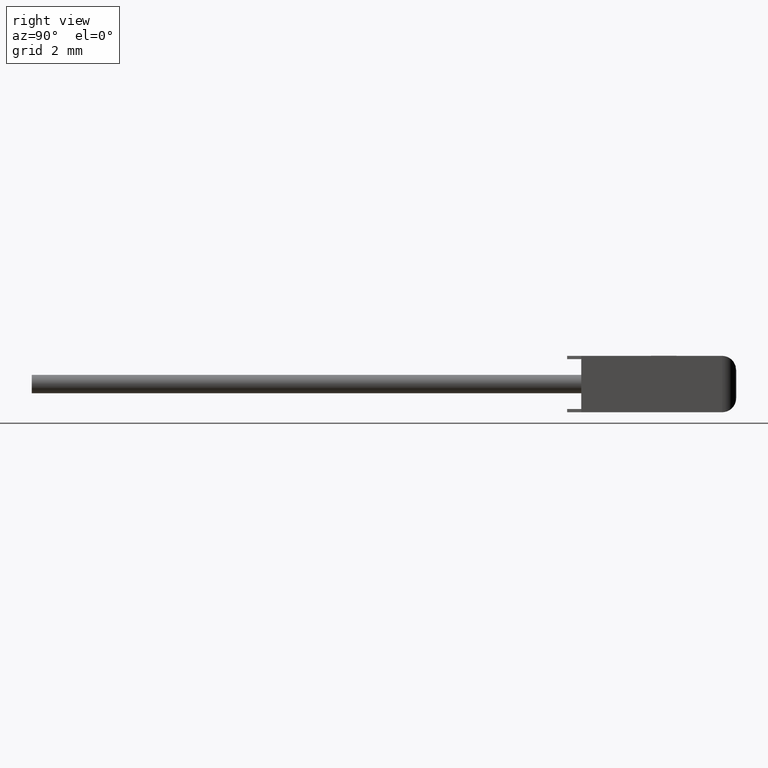
[diagram: clean part render]
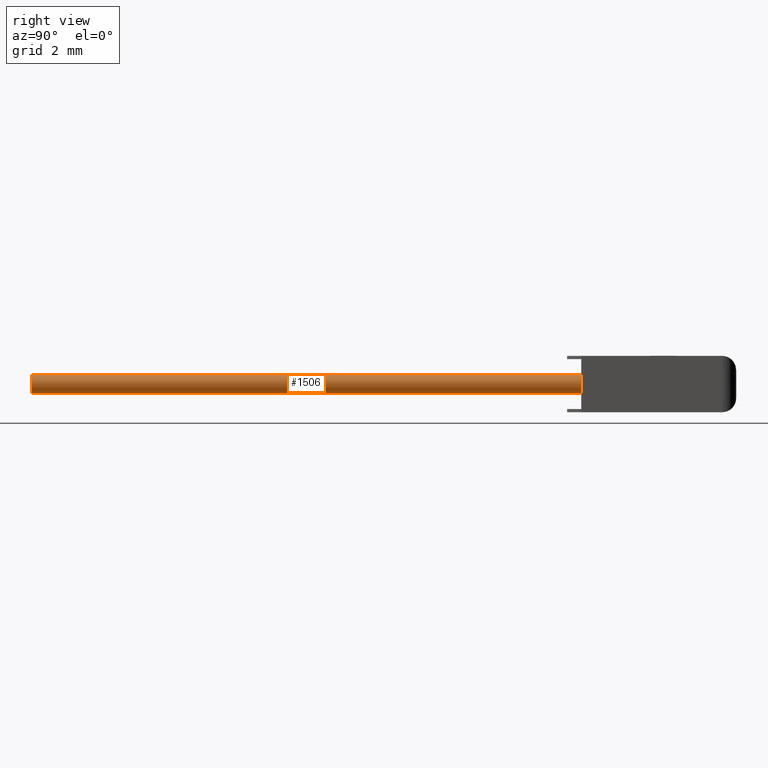
[diagram: same view with one face highlighted and labeled with its STEP entity id]
A machine part, right view. The second image highlights one B-rep face of the part: STEP entity #1506.
In plain terms, the highlighted cylindrical surface (edge-blend (fillet) strip) has radius 0.325 mm, axis along (-0, 1, -0).
Its self-contained STEP definition (entity closure, byte-faithful):
#25 = VECTOR ( 'NONE', #1696, 1000.000000000000000 ) ;
#77 = ORIENTED_EDGE ( 'NONE', *, *, #278, .T. ) ;
#116 = DIRECTION ( 'NONE',  ( 0.0000000000000000000, 0.0000000000000000000, 1.000000000000000000 ) ) ;
#125 = EDGE_LOOP ( 'NONE', ( #77, #1888, #2507, #1783 ) ) ;
#140 = CARTESIAN_POINT ( 'NONE',  ( 5.850000000000000500, -19.50000000000000000, 1.000000000000000200 ) ) ;
#278 = EDGE_CURVE ( 'NONE', #1403, #455, #3195, .T. ) ;
#455 = VERTEX_POINT ( 'NONE', #2188 ) ;
#470 = EDGE_CURVE ( 'NONE', #2373, #3039, #2795, .T. ) ;
#539 = CARTESIAN_POINT ( 'NONE',  ( 5.850000000000000500, 0.0000000000000000000, 0.6750000000000002700 ) ) ;
#581 = CARTESIAN_POINT ( 'NONE',  ( 5.850000000000000500, 0.0000000000000000000, 1.325000000000000200 ) ) ;
#606 = DIRECTION ( 'NONE',  ( -0.0000000000000000000, 1.000000000000000000, -0.0000000000000000000 ) ) ;
#672 = LINE ( 'NONE', #3024, #1114 ) ;
#945 = DIRECTION ( 'NONE',  ( 0.0000000000000000000, 0.0000000000000000000, -1.000000000000000000 ) ) ;
#989 = LINE ( 'NONE', #2921, #25 ) ;
#1114 = VECTOR ( 'NONE', #2294, 1000.000000000000000 ) ;
#1227 = DIRECTION ( 'NONE',  ( -0.0000000000000000000, 1.000000000000000000, -0.0000000000000000000 ) ) ;
#1313 = FACE_OUTER_BOUND ( 'NONE', #125, .T. ) ;
#1362 = CARTESIAN_POINT ( 'NONE',  ( 5.850000000000000500, -19.50000000000000000, 1.000000000000000200 ) ) ;
#1403 = VERTEX_POINT ( 'NONE', #2116 ) ;
#1506 = ADVANCED_FACE ( 'NONE', ( #1313 ), #2036, .T. ) ;
#1673 = EDGE_CURVE ( 'NONE', #455, #3039, #672, .T. ) ;
#1696 = DIRECTION ( 'NONE',  ( -0.0000000000000000000, 1.000000000000000000, -0.0000000000000000000 ) ) ;
#1783 = ORIENTED_EDGE ( 'NONE', *, *, #2128, .F. ) ;
#1888 = ORIENTED_EDGE ( 'NONE', *, *, #1673, .T. ) ;
#2036 = CYLINDRICAL_SURFACE ( 'NONE', #2745, 0.3250000000000000100 ) ;
#2116 = CARTESIAN_POINT ( 'NONE',  ( 5.850000000000000500, -19.50000000000000000, 1.325000000000000200 ) ) ;
#2128 = EDGE_CURVE ( 'NONE', #1403, #2373, #989, .T. ) ;
#2132 = DIRECTION ( 'NONE',  ( -0.0000000000000000000, 1.000000000000000000, -0.0000000000000000000 ) ) ;
#2181 = AXIS2_PLACEMENT_3D ( 'NONE', #2464, #1227, #2959 ) ;
#2188 = CARTESIAN_POINT ( 'NONE',  ( 5.850000000000000500, -19.50000000000000000, 0.6750000000000002700 ) ) ;
#2294 = DIRECTION ( 'NONE',  ( -0.0000000000000000000, 1.000000000000000000, -0.0000000000000000000 ) ) ;
#2373 = VERTEX_POINT ( 'NONE', #581 ) ;
#2464 = CARTESIAN_POINT ( 'NONE',  ( 5.850000000000000500, 0.0000000000000000000, 1.000000000000000200 ) ) ;
#2507 = ORIENTED_EDGE ( 'NONE', *, *, #470, .F. ) ;
#2510 = AXIS2_PLACEMENT_3D ( 'NONE', #140, #2132, #945 ) ;
#2745 = AXIS2_PLACEMENT_3D ( 'NONE', #1362, #606, #116 ) ;
#2795 = CIRCLE ( 'NONE', #2181, 0.3250000000000000100 ) ;
#2921 = CARTESIAN_POINT ( 'NONE',  ( 5.850000000000000500, -19.50000000000000000, 1.325000000000000200 ) ) ;
#2959 = DIRECTION ( 'NONE',  ( 0.0000000000000000000, 0.0000000000000000000, -1.000000000000000000 ) ) ;
#3024 = CARTESIAN_POINT ( 'NONE',  ( 5.850000000000000500, -19.50000000000000000, 0.6750000000000002700 ) ) ;
#3039 = VERTEX_POINT ( 'NONE', #539 ) ;
#3195 = CIRCLE ( 'NONE', #2510, 0.3250000000000000100 ) ;